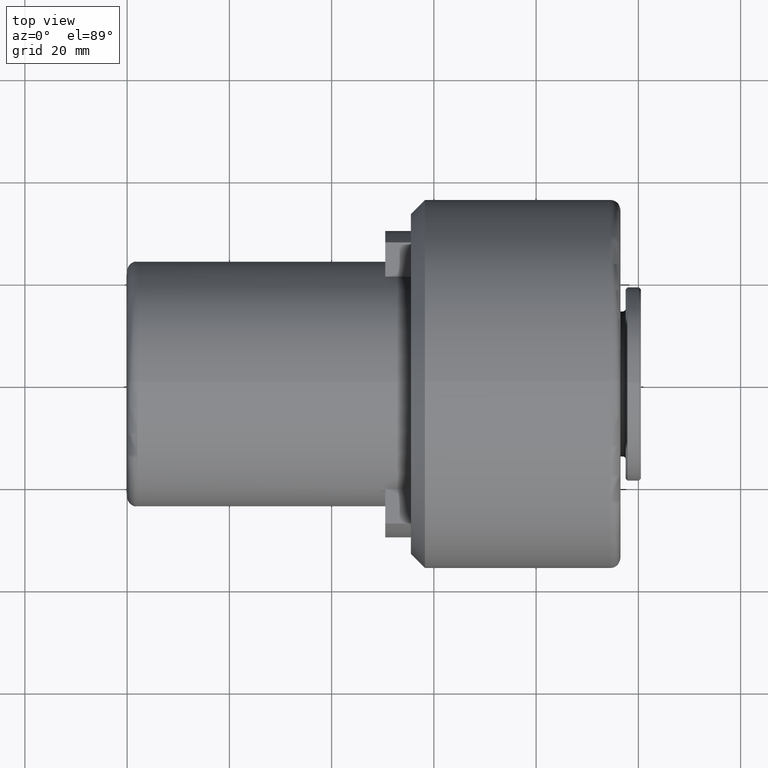
[diagram: clean part render]
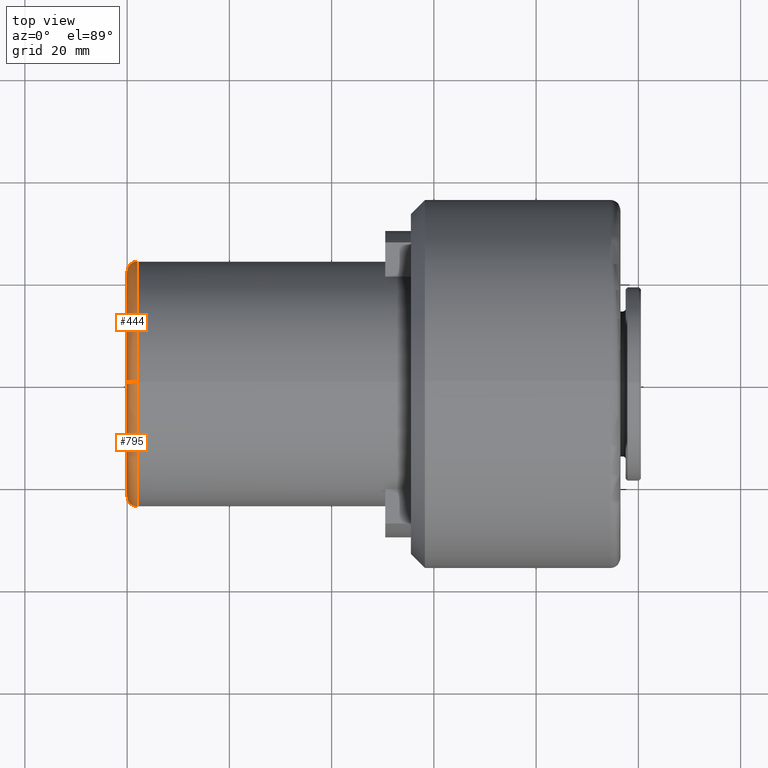
[diagram: same view with one multi-face feature highlighted, each face labeled with its STEP entity id]
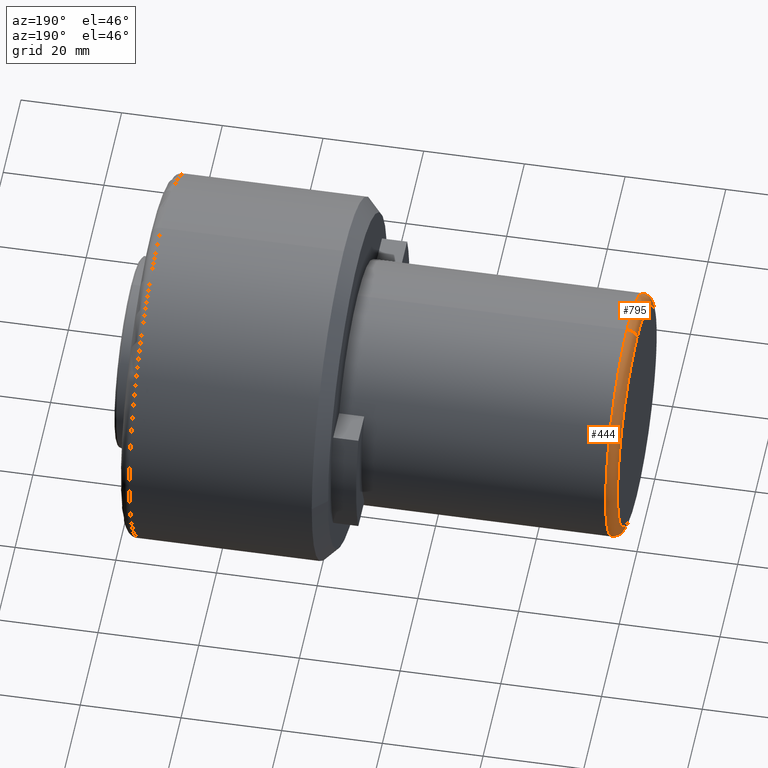
[diagram: same view with one multi-face feature highlighted, each face labeled with its STEP entity id]
A machine part, top view. The highlighted faces form ONE feature: a constant-radius fillet chain: 2 tangent blend faces with common blend radius 2 mm. The faces share edges in the B-rep.
A second angle (auxiliary view) of the same feature is appended — it is thin or edge-on in the first view.
Their STEP definitions:
[1] entity #444 (Torus):
#19 = CIRCLE ( 'NONE', #63, 24.00000000000000000 ) ;
#34 = EDGE_CURVE ( 'NONE', #65, #167, #635, .T. ) ;
#63 = AXIS2_PLACEMENT_3D ( 'NONE', #702, #827, #532 ) ;
#65 = VERTEX_POINT ( 'NONE', #1064 ) ;
#66 = CARTESIAN_POINT ( 'NONE',  ( 2.000000000000001800, 0.0000000000000000000, 21.99999999999999300 ) ) ;
#73 = EDGE_CURVE ( 'NONE', #65, #1150, #19, .T. ) ;
#82 = EDGE_LOOP ( 'NONE', ( #225, #115, #282, #1052 ) ) ;
#115 = ORIENTED_EDGE ( 'NONE', *, *, #34, .T. ) ;
#167 = VERTEX_POINT ( 'NONE', #778 ) ;
#176 = DIRECTION ( 'NONE',  ( 0.0000000000000000000, -1.224646799147351500E-016, 1.000000000000000000 ) ) ;
#178 = DIRECTION ( 'NONE',  ( 0.0000000000000000000, 0.0000000000000000000, -1.000000000000000000 ) ) ;
#223 = DIRECTION ( 'NONE',  ( -1.000000000000000000, 0.0000000000000000000, 0.0000000000000000000 ) ) ;
#225 = ORIENTED_EDGE ( 'NONE', *, *, #73, .F. ) ;
#261 = CIRCLE ( 'NONE', #1167, 2.000000000000001800 ) ;
#282 = ORIENTED_EDGE ( 'NONE', *, *, #1180, .F. ) ;
#292 = CIRCLE ( 'NONE', #1216, 22.00000000000000000 ) ;
#442 = FACE_OUTER_BOUND ( 'NONE', #82, .T. ) ;
#444 = ADVANCED_FACE ( 'NONE', ( #442 ), #1024, .T. ) ;
#532 = DIRECTION ( 'NONE',  ( 0.0000000000000000000, 0.0000000000000000000, 1.000000000000000000 ) ) ;
#611 = AXIS2_PLACEMENT_3D ( 'NONE', #1357, #642, #709 ) ;
#635 = CIRCLE ( 'NONE', #1001, 2.000000000000001800 ) ;
#642 = DIRECTION ( 'NONE',  ( -1.000000000000000000, 0.0000000000000000000, 0.0000000000000000000 ) ) ;
#697 = CARTESIAN_POINT ( 'NONE',  ( 2.000000000000001800, 2.694222958124176800E-015, -22.00000000000000700 ) ) ;
#702 = CARTESIAN_POINT ( 'NONE',  ( 2.000000000000001800, 0.0000000000000000000, -7.733975497063264400E-015 ) ) ;
#709 = DIRECTION ( 'NONE',  ( 0.0000000000000000000, 0.0000000000000000000, 1.000000000000000000 ) ) ;
#778 = CARTESIAN_POINT ( 'NONE',  ( 0.0000000000000000000, 2.816687638038912400E-015, -22.00000000000000700 ) ) ;
#812 = EDGE_CURVE ( 'NONE', #1150, #1308, #261, .T. ) ;
#826 = DIRECTION ( 'NONE',  ( 0.0000000000000000000, -1.000000000000000000, 0.0000000000000000000 ) ) ;
#827 = DIRECTION ( 'NONE',  ( 1.000000000000000000, -0.0000000000000000000, -0.0000000000000000000 ) ) ;
#867 = CARTESIAN_POINT ( 'NONE',  ( 0.0000000000000000000, 0.0000000000000000000, -7.733975497063264400E-015 ) ) ;
#878 = CARTESIAN_POINT ( 'NONE',  ( 0.0000000000000000000, 0.0000000000000000000, 21.99999999999999300 ) ) ;
#974 = CARTESIAN_POINT ( 'NONE',  ( 2.000000000000001800, 0.0000000000000000000, 23.99999999999999300 ) ) ;
#976 = DIRECTION ( 'NONE',  ( 0.0000000000000000000, 0.0000000000000000000, 1.000000000000000000 ) ) ;
#1001 = AXIS2_PLACEMENT_3D ( 'NONE', #697, #1186, #176 ) ;
#1024 = TOROIDAL_SURFACE ( 'NONE', #611, 22.00000000000000000, 2.000000000000000000 ) ;
#1052 = ORIENTED_EDGE ( 'NONE', *, *, #812, .F. ) ;
#1064 = CARTESIAN_POINT ( 'NONE',  ( 2.000000000000001800, 2.939152317953648700E-015, -24.00000000000001100 ) ) ;
#1150 = VERTEX_POINT ( 'NONE', #974 ) ;
#1167 = AXIS2_PLACEMENT_3D ( 'NONE', #66, #826, #178 ) ;
#1180 = EDGE_CURVE ( 'NONE', #1308, #167, #292, .T. ) ;
#1186 = DIRECTION ( 'NONE',  ( 0.0000000000000000000, 1.000000000000000000, 1.224646799147353200E-016 ) ) ;
#1216 = AXIS2_PLACEMENT_3D ( 'NONE', #867, #223, #976 ) ;
#1308 = VERTEX_POINT ( 'NONE', #878 ) ;
#1357 = CARTESIAN_POINT ( 'NONE',  ( 2.000000000000001800, 0.0000000000000000000, -7.733975497063264400E-015 ) ) ;
[2] entity #795 (Torus):
#34 = EDGE_CURVE ( 'NONE', #65, #167, #635, .T. ) ;
#65 = VERTEX_POINT ( 'NONE', #1064 ) ;
#66 = CARTESIAN_POINT ( 'NONE',  ( 2.000000000000001800, 0.0000000000000000000, 21.99999999999999300 ) ) ;
#98 = EDGE_LOOP ( 'NONE', ( #341, #171, #718, #259 ) ) ;
#103 = CARTESIAN_POINT ( 'NONE',  ( 2.000000000000001800, 0.0000000000000000000, -7.733975497063264400E-015 ) ) ;
#167 = VERTEX_POINT ( 'NONE', #778 ) ;
#171 = ORIENTED_EDGE ( 'NONE', *, *, #1062, .F. ) ;
#174 = DIRECTION ( 'NONE',  ( 0.0000000000000000000, 0.0000000000000000000, 1.000000000000000000 ) ) ;
#176 = DIRECTION ( 'NONE',  ( 0.0000000000000000000, -1.224646799147351500E-016, 1.000000000000000000 ) ) ;
#178 = DIRECTION ( 'NONE',  ( 0.0000000000000000000, 0.0000000000000000000, -1.000000000000000000 ) ) ;
#187 = CARTESIAN_POINT ( 'NONE',  ( 0.0000000000000000000, 0.0000000000000000000, -7.733975497063264400E-015 ) ) ;
#216 = DIRECTION ( 'NONE',  ( 0.0000000000000000000, 0.0000000000000000000, 1.000000000000000000 ) ) ;
#259 = ORIENTED_EDGE ( 'NONE', *, *, #898, .F. ) ;
#261 = CIRCLE ( 'NONE', #1167, 2.000000000000001800 ) ;
#288 = DIRECTION ( 'NONE',  ( 0.0000000000000000000, 0.0000000000000000000, 1.000000000000000000 ) ) ;
#289 = TOROIDAL_SURFACE ( 'NONE', #1230, 22.00000000000000000, 2.000000000000000000 ) ;
#311 = AXIS2_PLACEMENT_3D ( 'NONE', #187, #944, #288 ) ;
#319 = CIRCLE ( 'NONE', #1046, 24.00000000000000000 ) ;
#341 = ORIENTED_EDGE ( 'NONE', *, *, #34, .F. ) ;
#497 = DIRECTION ( 'NONE',  ( -1.000000000000000000, 0.0000000000000000000, 0.0000000000000000000 ) ) ;
#635 = CIRCLE ( 'NONE', #1001, 2.000000000000001800 ) ;
#697 = CARTESIAN_POINT ( 'NONE',  ( 2.000000000000001800, 2.694222958124176800E-015, -22.00000000000000700 ) ) ;
#718 = ORIENTED_EDGE ( 'NONE', *, *, #812, .T. ) ;
#778 = CARTESIAN_POINT ( 'NONE',  ( 0.0000000000000000000, 2.816687638038912400E-015, -22.00000000000000700 ) ) ;
#795 = ADVANCED_FACE ( 'NONE', ( #1124 ), #289, .T. ) ;
#812 = EDGE_CURVE ( 'NONE', #1150, #1308, #261, .T. ) ;
#826 = DIRECTION ( 'NONE',  ( 0.0000000000000000000, -1.000000000000000000, 0.0000000000000000000 ) ) ;
#858 = DIRECTION ( 'NONE',  ( 1.000000000000000000, -0.0000000000000000000, -0.0000000000000000000 ) ) ;
#878 = CARTESIAN_POINT ( 'NONE',  ( 0.0000000000000000000, 0.0000000000000000000, 21.99999999999999300 ) ) ;
#898 = EDGE_CURVE ( 'NONE', #167, #1308, #1042, .T. ) ;
#944 = DIRECTION ( 'NONE',  ( -1.000000000000000000, 0.0000000000000000000, 0.0000000000000000000 ) ) ;
#974 = CARTESIAN_POINT ( 'NONE',  ( 2.000000000000001800, 0.0000000000000000000, 23.99999999999999300 ) ) ;
#1001 = AXIS2_PLACEMENT_3D ( 'NONE', #697, #1186, #176 ) ;
#1042 = CIRCLE ( 'NONE', #311, 22.00000000000000000 ) ;
#1046 = AXIS2_PLACEMENT_3D ( 'NONE', #103, #858, #216 ) ;
#1062 = EDGE_CURVE ( 'NONE', #1150, #65, #319, .T. ) ;
#1064 = CARTESIAN_POINT ( 'NONE',  ( 2.000000000000001800, 2.939152317953648700E-015, -24.00000000000001100 ) ) ;
#1124 = FACE_OUTER_BOUND ( 'NONE', #98, .T. ) ;
#1150 = VERTEX_POINT ( 'NONE', #974 ) ;
#1167 = AXIS2_PLACEMENT_3D ( 'NONE', #66, #826, #178 ) ;
#1186 = DIRECTION ( 'NONE',  ( 0.0000000000000000000, 1.000000000000000000, 1.224646799147353200E-016 ) ) ;
#1230 = AXIS2_PLACEMENT_3D ( 'NONE', #1363, #497, #174 ) ;
#1308 = VERTEX_POINT ( 'NONE', #878 ) ;
#1363 = CARTESIAN_POINT ( 'NONE',  ( 2.000000000000001800, 0.0000000000000000000, -7.733975497063264400E-015 ) ) ;